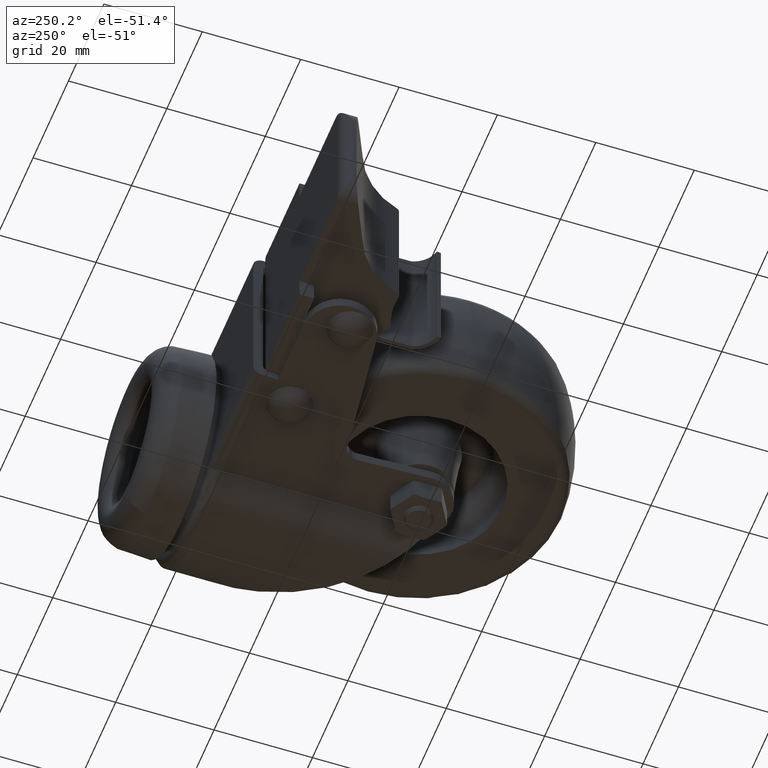
[diagram: clean part render]
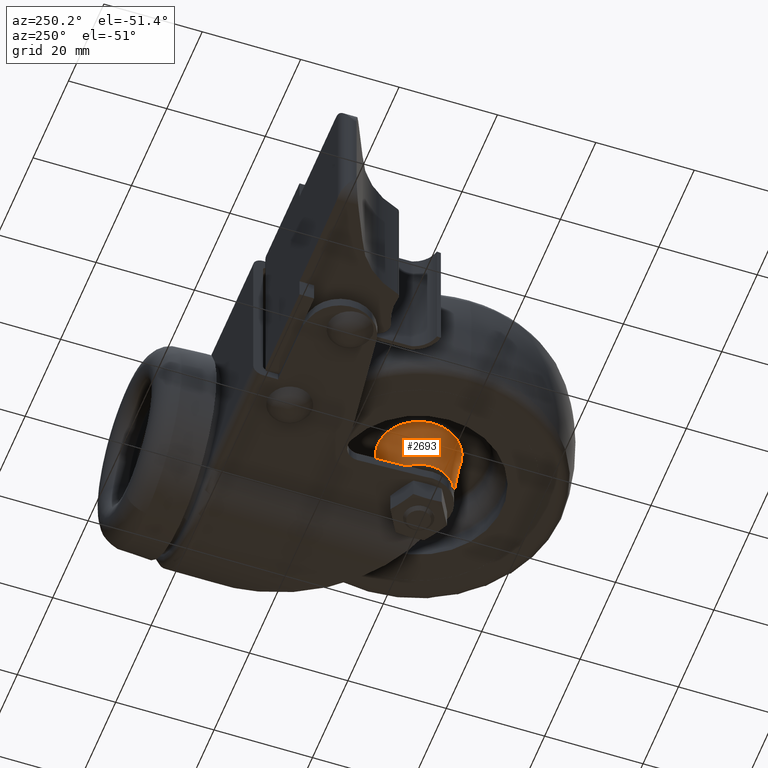
[diagram: same view with one face highlighted and labeled with its STEP entity id]
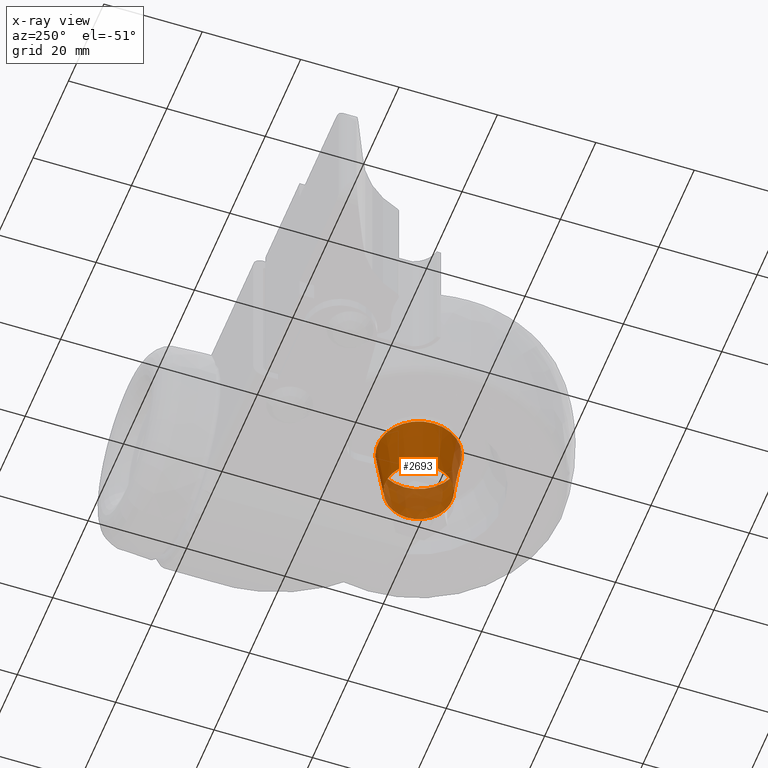
[diagram: x-ray of the same camera — body ghosted, the highlighted face saturated]
A machine part, auxiliary view. The second image highlights one B-rep face of the part: STEP entity #2693.
The next image is the same camera in x-ray: the body ghosted, the highlighted face saturated — about 19% of this face is hidden behind the body in this view.
In plain terms, the highlighted conical surface has half-angle 7.871 deg.
Its self-contained STEP definition (entity closure, byte-faithful):
#422=CONICAL_SURFACE('',#2916,8.29636583592915,0.137367685896931);
#533=FACE_BOUND('',#835,.T.);
#621=FACE_OUTER_BOUND('',#834,.T.);
#834=EDGE_LOOP('',(#1893));
#835=EDGE_LOOP('',(#1894));
#1049=CIRCLE('',#2857,6.7517);
#1080=CIRCLE('',#2915,8.29636583592915);
#1207=VERTEX_POINT('',#4072);
#1238=VERTEX_POINT('',#4191);
#1467=EDGE_CURVE('',#1207,#1207,#1049,.T.);
#1499=EDGE_CURVE('',#1238,#1238,#1080,.T.);
#1893=ORIENTED_EDGE('',*,*,#1467,.T.);
#1894=ORIENTED_EDGE('',*,*,#1499,.F.);
#2693=ADVANCED_FACE('',(#621,#533),#422,.T.);
#2857=AXIS2_PLACEMENT_3D('',#4073,#3219,#3220);
#2915=AXIS2_PLACEMENT_3D('',#4192,#3335,#3336);
#2916=AXIS2_PLACEMENT_3D('',#4193,#3337,#3338);
#3219=DIRECTION('center_axis',(1.,0.,0.));
#3220=DIRECTION('ref_axis',(0.,0.,-1.));
#3335=DIRECTION('center_axis',(1.,0.,0.));
#3336=DIRECTION('ref_axis',(0.,0.,-1.));
#3337=DIRECTION('center_axis',(1.,0.,0.));
#3338=DIRECTION('ref_axis',(0.,0.,-1.));
#4072=CARTESIAN_POINT('',(-3.46944695195361E-15,0.,-6.7517));
#4073=CARTESIAN_POINT('Origin',(-3.46944695195361E-15,0.,0.));
#4191=CARTESIAN_POINT('',(11.1739358094932,0.,-8.29636583592915));
#4192=CARTESIAN_POINT('Origin',(11.1739358094932,0.,0.));
#4193=CARTESIAN_POINT('Origin',(11.1739358094932,0.,0.));